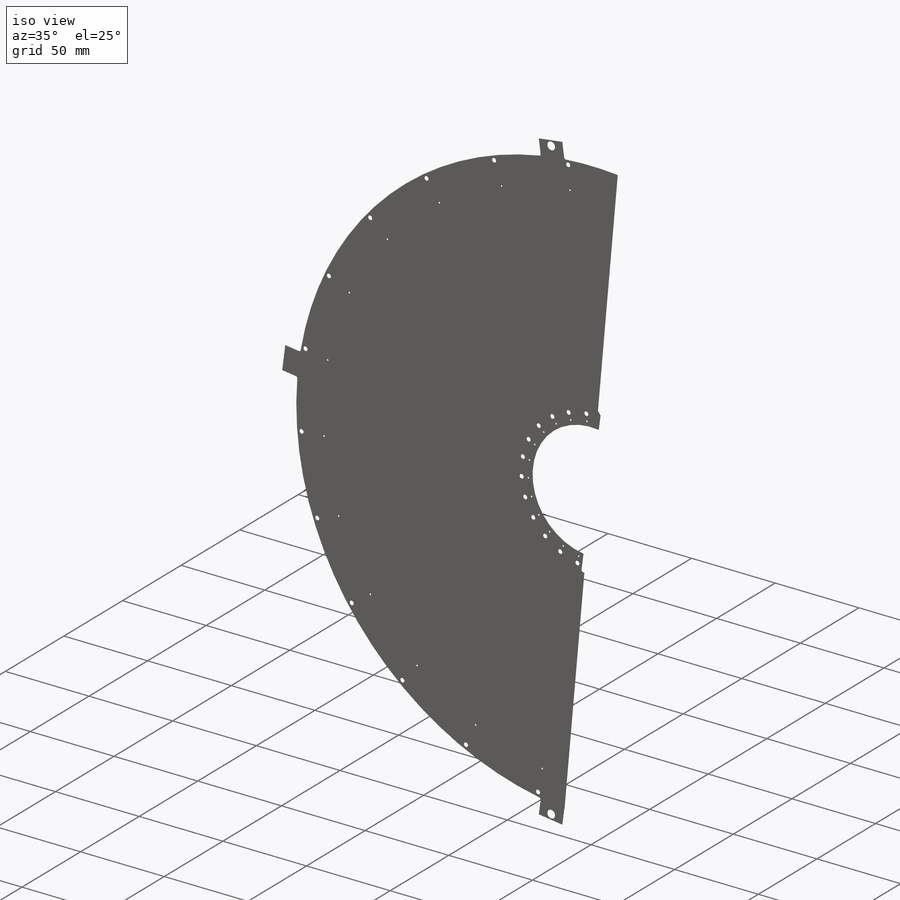
[diagram: iso view]
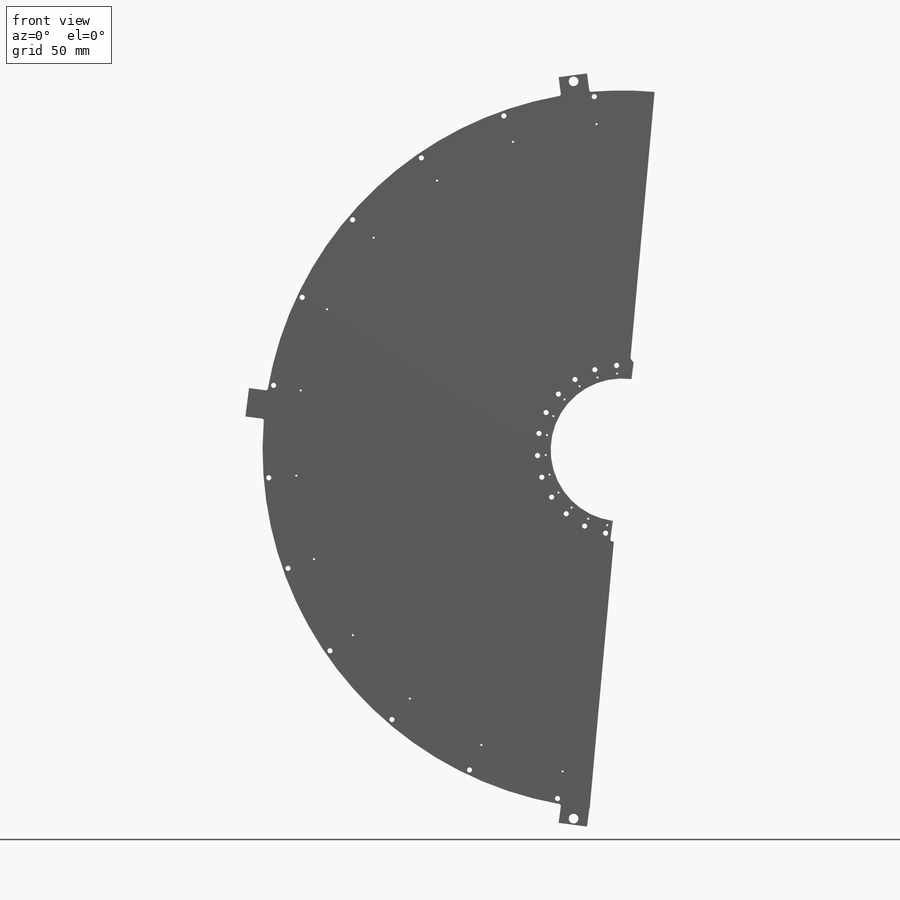
[diagram: front view]
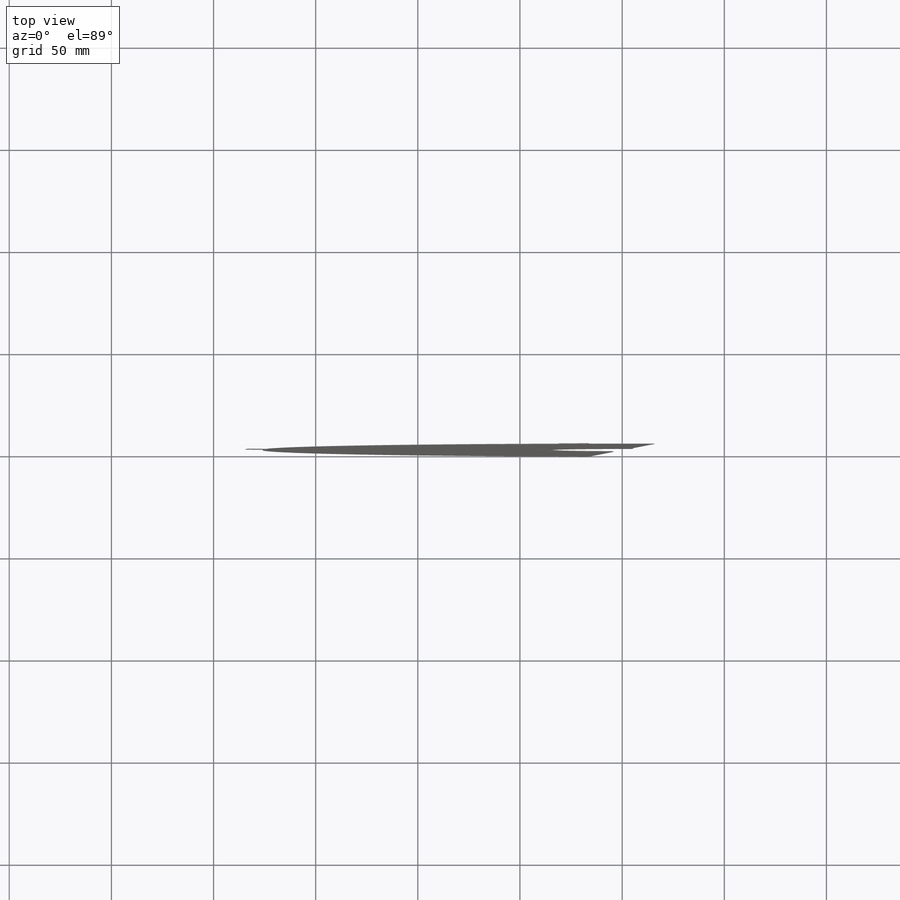
[diagram: top view]
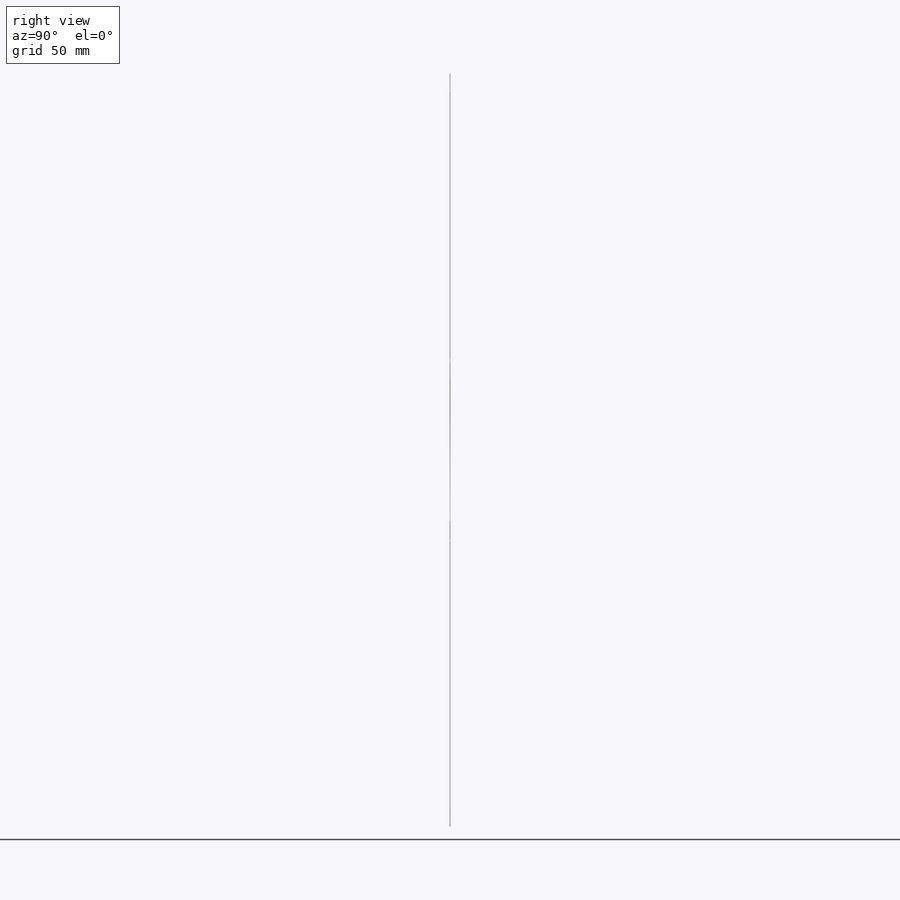
[diagram: right view]
SOLIDWORKS PART (.sldprt)
format: sldprt  version: not decoded by parser v0  size: 540,160 bytes
history: native  units: mm
features: sketch x7, cut_extrude x5, plane x3, extrude x2, fillet x2, material x1, pattern_circular x1 + 2 further entries (+13 scaffold rows collapsed)
feature tree (36):
  scaffold x13  (default folders/planes/origin — collapsed)
  material  "Material <not specified>"
  plane  "Plane1"
  plane  "Plane2"
  plane  "Plane3"
  "Axis2"
  "Axis3"
  sketch  "Sketch7"  dims[c1.D1=35.0mm c1.D2=176.0mm c1.D4=45.0mm c1.D3=110.0mm c2.D3=4.0deg c3.D3=110.0mm c4.D3=~5.178469deg c4.D5=110.0mm c5.D5=7.5deg]
  extrude  "Extrude5"  Depth=0.254mm
  sketch  "Sketch12"  dims[c1.D1=185.5mm c1.D4=180.0mm c1.D2=~14.553355mm c2.D2=7.0deg c2.D3=~14.858397mm c3.D3=7.0deg c3.D2=15.0mm c4.D3=14.0mm c4.D1=10.0mm c4.D4=~140.002857mm c5.D4=~3.312872deg c5.D2=10.0mm c6.D4=~193.500309mm c7.D4=9.5deg c7.D5=7.271mm c8.D5=7.5deg c9.D5=~212.473349mm c10.D5=7.25deg c10.D6=7.5mm c10.D2=15.5mm c11.D2=4.0deg c12.D2=0.2794mm c13.D2=5.5deg c13.D4=0.2794mm c14.D4=7.5deg c14.D1=185.0mm c14.D7=185.0mm c14.D2=7.0mm c14.D6=7.0mm c14.D8=~8.998574mm]
  extrude  "Extrude10"  [1 undecoded]
  sketch  "Sketch18"  dims[c1.D1=~15.636373mm c1.D2=3.5mm c1.D3=4.7625mm c1.D4=2.1844mm c2.D1=176.0mm c2.D4=6.0mm c2.D5=185.5mm c3.D5=9.5deg c4.D5=0.2794mm c5.D5=9.5deg c5.D6=~24.212609mm c6.D6=7.5deg]
  cut_extrude  "Cut-Extrude1"  [1 undecoded]
  fillet  "Fillet1"  Radius=1mm
  sketch  "Sketch27"  dims[c1.D1=~3.96875mm c1.D2=0.5mm c2.D1=4.7244mm c2.D3=178.0mm c2.D4=176.0mm c3.D4=6.0deg c3.D1=~4.96875mm c3.D2=0.2794mm c4.D2=7.5deg]
  cut_extrude  "Cut-Extrude2"  [1 undecoded]
  sketch  "Sketch31"  dims[c1.D2=1.5875mm c1.D4=2.1844mm c1.D5=1.0mm c1.D9=2.5mm c1.D10=1.0mm c1.D12=3.5mm c1.D13=3.5mm c1.D11=3.5mm c2.D4=2.5mm c2.D1=~169.449665mm c3.D1=3.75deg c3.D2=~2.54375mm c3.D3=~170.227382mm c3.D6=160.0mm c3.D7=37.5mm c3.D8=41.5mm c3.D11=~9.977047mm c4.D11=7.5deg c4.D2=~177.004686mm c5.D2=11.25deg c5.D12=18.0mm c5.D13=18.0mm c6.D2=0.2794mm c7.D2=11.25deg c7.D11=18.0mm c7.D12=18.0mm c8.D11=17.5mm c8.D3=173.5mm c9.D11=~39.846346mm c10.D11=~358.419922deg c11.D11=~40.119041mm c12.D11=0.75deg]
  cut_extrude  "Cut-Extrude4"  [1 undecoded]
  pattern_circular  "CirPattern1"  Count=12 Angle=15deg
  sketch  "Sketch32"
  cut_extrude  "Cut-Extrude5"  [1 undecoded]
  sketch  "Sketch33"  dims[c1.D1=~1.827541mm c2.D1=45.0deg]
  cut_extrude  "Cut-Extrude6"  [1 undecoded]
  fillet  "Fillet2"  Radius=1mm
decode coverage: 10 of 17 modeling features carry decoded parameters; 2 rows unclassified (native names shown)
note: ~ marks probable driven/reference dimensions
note: 6 parameter values undecoded
summary: no parameter record found for 6 features
note: suppression state not decoded; provenance and decode notes live in map.json
